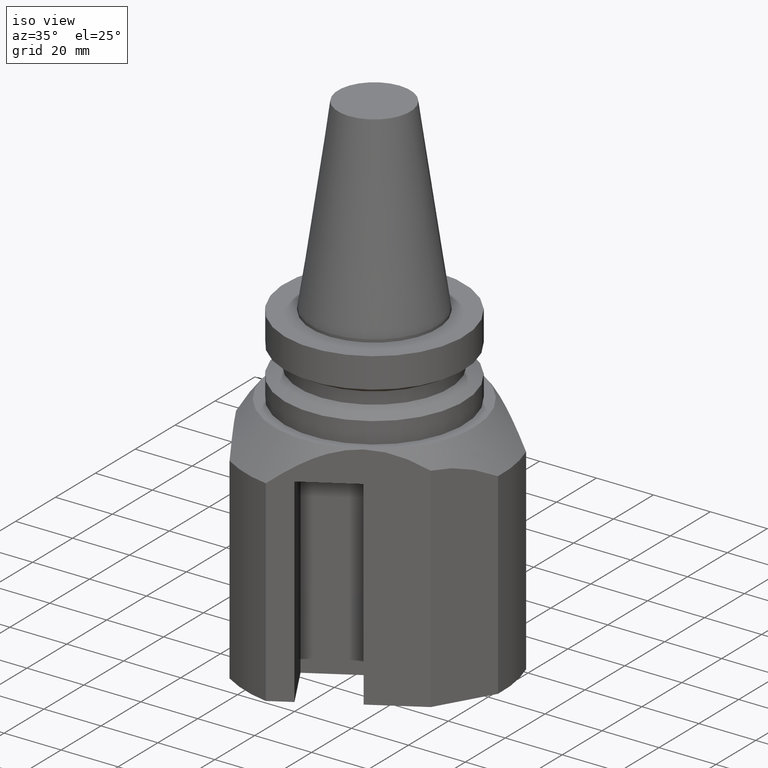
[diagram: clean part render]
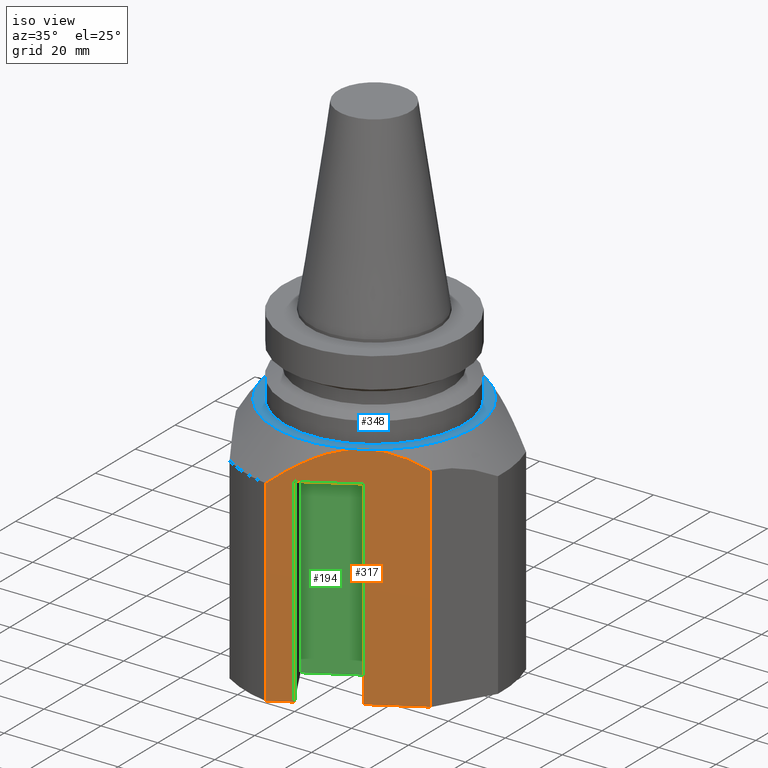
[diagram: same view with three faces highlighted in distinct colors, each labeled with its STEP entity id]
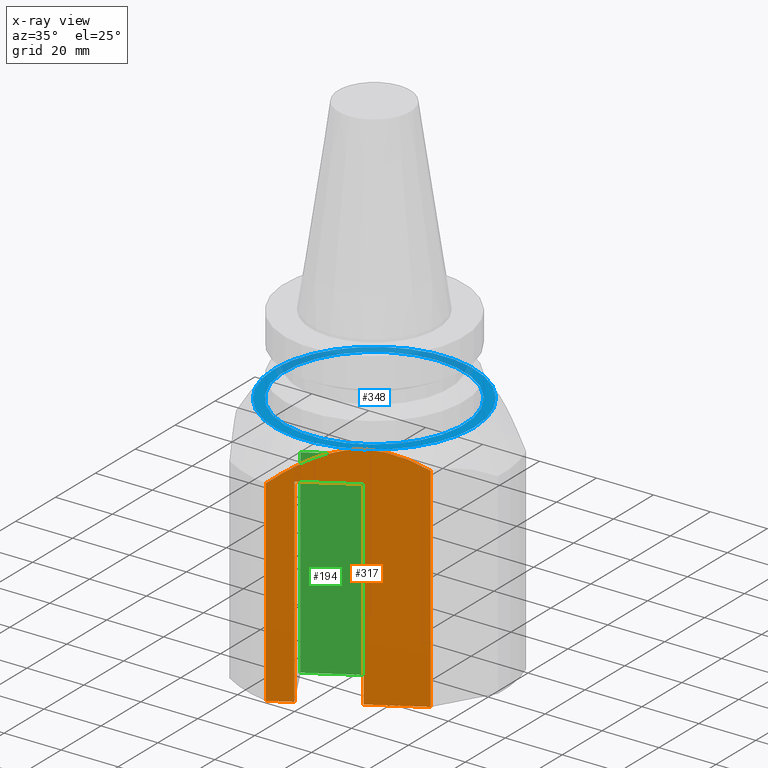
[diagram: x-ray of the same camera — body ghosted, the three highlighted faces saturated]
A machine part, iso view with three faces highlighted in distinct colors.
The next image is the same camera in x-ray (body ghosted, the three faces saturated) — at least one of them is partly hidden behind the body in this view.
Their STEP definitions:

[orange] entity #317 — the highlighted planar face has unit normal (-0.5, 0.866, -0).
#148=EDGE_CURVE('Unnamed[1]',#440,#441,#442,.T.);
#150=EDGE_CURVE('Unnamed[1]',#444,#445,#446,.T.);
#158=EDGE_CURVE('Unnamed[1]',#458,#459,#460,.T.);
#177=EDGE_CURVE('Unnamed[1]',#491,#492,#493,.T.);
#188=EDGE_CURVE('Unnamed[1]',#458,#492,#509,.T.);
#251=EDGE_CURVE('Unnamed[1]',#441,#444,#599,.T.);
#280=EDGE_CURVE('Unnamed[1]',#638,#459,#639,.T.);
#282=EDGE_CURVE('Unnamed[1]',#440,#562,#641,.T.);
#317=ADVANCED_FACE('Unnamed[1]',(#685),#686,.F.);
#385=EDGE_CURVE('Unnamed[1]',#562,#638,#767,.T.);
#404=EDGE_CURVE('Unnamed[1]',#445,#491,#789,.T.);
#440=VERTEX_POINT('',#823);
#441=VERTEX_POINT('',#824);
#442=LINE('',#825,#826);
#444=VERTEX_POINT('',#829);
#445=VERTEX_POINT('',#830);
#446=(B_SPLINE_CURVE(2,(#832,#833,#834),.UNSPECIFIED.,.F.,.F.)B_SPLINE_CURVE_WITH_KNOTS((3,3),(0.0,31.0884589213691),.UNSPECIFIED.)RATIONAL_B_SPLINE_CURVE((1.0,1.06899021366542,1.0))BOUNDED_CURVE()REPRESENTATION_ITEM('')GEOMETRIC_REPRESENTATION_ITEM()CURVE());
#458=VERTEX_POINT('',#858);
#459=VERTEX_POINT('',#859);
#460=LINE('',#860,#861);
#491=VERTEX_POINT('',#912);
#492=VERTEX_POINT('',#913);
#493=(B_SPLINE_CURVE(2,(#915,#916,#917),.UNSPECIFIED.,.F.,.F.)B_SPLINE_CURVE_WITH_KNOTS((3,3),(0.0,31.0884589213691),.UNSPECIFIED.)RATIONAL_B_SPLINE_CURVE((1.0,1.06899021366542,1.0))BOUNDED_CURVE()REPRESENTATION_ITEM('')GEOMETRIC_REPRESENTATION_ITEM()CURVE());
#509=LINE('',#947,#948);
#562=VERTEX_POINT('',#1038);
#599=LINE('',#1104,#1105);
#638=VERTEX_POINT('',#1165);
#639=LINE('',#1166,#1167);
#641=LINE('',#1170,#1171);
#685=FACE_OUTER_BOUND('',#1235,.T.);
#686=PLANE('',#1236);
#767=LINE('',#1383,#1384);
#789=LINE('',#1414,#1415);
#823=CARTESIAN_POINT('',(0.179491924310755,-40.3108891324556,-109.999999999999));
#824=CARTESIAN_POINT('',(-6.99489742783171,-44.4530247561868,-109.999999999999));
#825=CARTESIAN_POINT('',(20.443176615021,-28.6116453214988,-110.0));
#826=VECTOR('',#1434,1.0);
#829=CARTESIAN_POINT('',(-6.99489742783171,-44.4530247561868,-40.9175350302172));
#830=CARTESIAN_POINT('',(17.4912162002426,-30.3159604616084,-28.9999997615812));
#832=CARTESIAN_POINT('',(-6.99489742787853,-44.4530247562138,-40.9175350302577));
#833=CARTESIAN_POINT('',(6.77854123492265,-36.5009262365777,-29.0042718234989));
#834=CARTESIAN_POINT('',(17.4912162002426,-30.3159604616084,-28.9999997615812));
#858=CARTESIAN_POINT('',(34.2820323027618,-20.6217782649042,-110.0));
#859=CARTESIAN_POINT('',(17.4999999999993,-30.3108891324544,-110.0));
#860=CARTESIAN_POINT('',(20.443176615021,-28.6116453214988,-110.0));
#861=VECTOR('',#1440,1.0);
#912=CARTESIAN_POINT('',(17.5087837997597,-30.3058178032982,-28.9999997615812));
#913=CARTESIAN_POINT('',(34.2820323027618,-20.6217782649042,-34.9664449312327));
#915=CARTESIAN_POINT('',(17.5087837997597,-30.3058178032982,-28.9999997615812));
#916=CARTESIAN_POINT('',(28.2214587650797,-24.120852028329,-29.0042718234989));
#917=CARTESIAN_POINT('',(41.9948974278808,-16.1687535086928,-40.9175350302577));
#947=CARTESIAN_POINT('',(34.2820323027617,-20.6217782649042,-279.0));
#948=VECTOR('',#1475,1.0);
#1038=CARTESIAN_POINT('',(0.179491924310754,-40.3108891324556,-39.9999999999998));
#1104=CARTESIAN_POINT('',(-6.99489742783119,-44.4530247561865,-75.4587675151083));
#1105=VECTOR('',#1560,1.0);
#1165=CARTESIAN_POINT('',(17.4999999999993,-30.3108891324544,-39.9999999999998));
#1166=CARTESIAN_POINT('',(17.4999999999992,-30.3108891324545,-279.0));
#1167=VECTOR('',#1589,1.0);
#1170=CARTESIAN_POINT('',(0.17949192431074,-40.3108891324556,-279.0));
#1171=VECTOR('',#1590,1.0);
#1235=EDGE_LOOP('',(#1648,#1649,#1650,#1651,#1652,#1653,#1654,#1655,#1656,#1657));
#1236=AXIS2_PLACEMENT_3D('',#1658,#1659,#1660);
#1383=CARTESIAN_POINT('',(4.24576782675331,-37.9632236455808,-39.9999999999998));
#1384=VECTOR('',#1797,1.0);
#1414=CARTESIAN_POINT('',(22.7706200467826,-27.2678952296474,-28.9999997615812));
#1415=VECTOR('',#1825,1.0);
#1434=DIRECTION('',(-0.86602540378441,-0.50000000000005,2.32483850203637E-015));
#1440=DIRECTION('',(-0.86602540378441,-0.50000000000005,2.32483850203637E-015));
#1475=DIRECTION('',(6.12323399573677E-017,1.22464679914735E-016,1.0));
#1560=DIRECTION('',(6.12323399573677E-017,2.6993447194459E-016,1.0));
#1589=DIRECTION('',(-6.12323399573677E-017,-1.22464679914735E-016,-1.0));
#1590=DIRECTION('',(6.12323399573677E-017,1.22464679914735E-016,1.0));
#1648=ORIENTED_EDGE('',*,*,#282,.T.);
#1649=ORIENTED_EDGE('',*,*,#385,.T.);
#1650=ORIENTED_EDGE('',*,*,#280,.T.);
#1651=ORIENTED_EDGE('',*,*,#158,.F.);
#1652=ORIENTED_EDGE('',*,*,#188,.T.);
#1653=ORIENTED_EDGE('',*,*,#177,.F.);
#1654=ORIENTED_EDGE('',*,*,#404,.F.);
#1655=ORIENTED_EDGE('',*,*,#150,.F.);
#1656=ORIENTED_EDGE('',*,*,#251,.F.);
#1657=ORIENTED_EDGE('',*,*,#148,.F.);
#1658=CARTESIAN_POINT('',(13.643567437465,-32.5374015105455,-279.0));
#1659=DIRECTION('',(-0.50000000000005,0.86602540378441,-7.54413538938002E-017));
#1660=DIRECTION('',(-0.86602540378441,-0.50000000000005,1.14261101893617E-016));
#1797=DIRECTION('',(0.86602540378441,0.50000000000005,-1.14261101893617E-016));
#1825=DIRECTION('',(0.86602540378441,0.50000000000005,-1.14261101893617E-016));

[blue] entity #348 — the highlighted planar face has unit normal (0, 0, 1).
#213=EDGE_CURVE('Unnamed[1]',#544,#445,#545,.T.);
#253=EDGE_CURVE('Unnamed[1]',#601,#601,#602,.T.);
#284=EDGE_CURVE('Unnamed[1]',#567,#643,#644,.T.);
#348=ADVANCED_FACE('Unnamed[1]',(#725,#726),#727,.T.);
#375=EDGE_CURVE('Unnamed[1]',#488,#544,#757,.T.);
#381=EDGE_CURVE('Unnamed[1]',#491,#567,#763,.T.);
#395=EDGE_CURVE('Unnamed[1]',#643,#488,#778,.T.);
#404=EDGE_CURVE('Unnamed[1]',#445,#491,#789,.T.);
#445=VERTEX_POINT('',#830);
#488=VERTEX_POINT('',#899);
#491=VERTEX_POINT('',#912);
#544=VERTEX_POINT('',#1005);
#545=CIRCLE('',#1006,35.0000014696205);
#567=VERTEX_POINT('',#1045);
#601=VERTEX_POINT('',#1108);
#602=CIRCLE('',#1109,31.4999999999984);
#643=VERTEX_POINT('',#1174);
#644=LINE('',#1175,#1176);
#725=FACE_BOUND('',#1289,.T.);
#726=FACE_OUTER_BOUND('',#1290,.T.);
#727=PLANE('',#1291);
#757=LINE('',#1364,#1365);
#763=CIRCLE('',#1376,35.0000014696205);
#778=CIRCLE('',#1398,35.0000014696205);
#789=LINE('',#1414,#1415);
#830=CARTESIAN_POINT('',(17.4912162002426,-30.3159604616084,-28.9999997615812));
#899=CARTESIAN_POINT('',(-35.0000000000001,0.0101426537613133,-28.9999997615812));
#912=CARTESIAN_POINT('',(17.5087837997597,-30.3058178032982,-28.9999997615812));
#1005=CARTESIAN_POINT('',(-35.0000000000001,-0.0101426537624374,-28.9999997615812));
#1006=AXIS2_PLACEMENT_3D('',#1517,#1518,#1519);
#1045=CARTESIAN_POINT('',(17.5087838003882,30.3058178029351,-28.9999997615812));
#1108=CARTESIAN_POINT('',(2.08189957314924E-015,31.4999999999983,-28.9999997615812));
#1109=AXIS2_PLACEMENT_3D('',#1561,#1562,#1563);
#1174=CARTESIAN_POINT('',(17.4912161996077,30.3159604619747,-28.9999997615812));
#1175=CARTESIAN_POINT('',(12.2293799532183,33.3538830352591,-28.9999997615812));
#1176=VECTOR('',#1591,1.0);
#1289=EDGE_LOOP('',(#1743));
#1290=EDGE_LOOP('',(#1744,#1745,#1746,#1747,#1748,#1749));
#1291=AXIS2_PLACEMENT_3D('',#1750,#1751,#1752);
#1364=CARTESIAN_POINT('',(-35.0000000000004,18.8515127454982,-28.9999997615812));
#1365=VECTOR('',#1790,1.0);
#1376=AXIS2_PLACEMENT_3D('',#1793,#1794,#1795);
#1398=AXIS2_PLACEMENT_3D('',#1810,#1811,#1812);
#1414=CARTESIAN_POINT('',(22.7706200467826,-27.2678952296474,-28.9999997615812));
#1415=VECTOR('',#1825,1.0);
#1517=CARTESIAN_POINT('',(-1.77573784416473E-015,-1.92489808601885E-014,-28.9999997615812));
#1518=DIRECTION('',(6.12323399573677E-017,2.69934471944565E-016,1.0));
#1519=DIRECTION('',(1.22464679914735E-016,1.0,-2.69934471944565E-016));
#1561=CARTESIAN_POINT('',(-1.77573784416473E-015,-1.92489808601885E-014,-28.9999997615812));
#1562=DIRECTION('',(6.12323399573677E-017,2.69934471944597E-016,1.0));
#1563=DIRECTION('',(1.22464679914735E-016,1.0,-2.69934471944597E-016));
#1591=DIRECTION('',(-0.866025403784461,0.499999999999962,-8.20357802111623E-018));
#1743=ORIENTED_EDGE('',*,*,#253,.F.);
#1744=ORIENTED_EDGE('',*,*,#404,.T.);
#1745=ORIENTED_EDGE('',*,*,#381,.T.);
#1746=ORIENTED_EDGE('',*,*,#284,.T.);
#1747=ORIENTED_EDGE('',*,*,#395,.T.);
#1748=ORIENTED_EDGE('',*,*,#375,.T.);
#1749=ORIENTED_EDGE('',*,*,#213,.T.);
#1750=CARTESIAN_POINT('',(2.29621285298842E-015,33.2500007348094,-28.9999997615812));
#1751=DIRECTION('',(6.12323399573677E-017,1.22464679914735E-016,1.0));
#1752=DIRECTION('',(1.22464679914735E-016,1.0,-1.22464679914735E-016));
#1790=DIRECTION('',(1.53816434551991E-014,-1.0,1.22464679914734E-016));
#1793=CARTESIAN_POINT('',(-1.77573784416473E-015,-1.92489808601885E-014,-28.9999997615812));
#1794=DIRECTION('',(6.12323399573677E-017,2.69934471944565E-016,1.0));
#1795=DIRECTION('',(1.22464679914735E-016,1.0,-2.69934471944565E-016));
#1810=CARTESIAN_POINT('',(-1.77573784416473E-015,-1.92489808601885E-014,-28.9999997615812));
#1811=DIRECTION('',(6.12323399573677E-017,2.69934471944565E-016,1.0));
#1812=DIRECTION('',(1.22464679914735E-016,1.0,-2.69934471944565E-016));
#1825=DIRECTION('',(0.86602540378441,0.50000000000005,-1.14261101893617E-016));

[green] entity #194 — the highlighted planar face has unit normal (-0.5, 0.866, -0).
#143=EDGE_CURVE('Unnamed[1]',#431,#432,#433,.T.);
#194=ADVANCED_FACE('Unnamed[1]',(#516),#517,.F.);
#259=EDGE_CURVE('Unnamed[1]',#563,#609,#610,.T.);
#276=EDGE_CURVE('Unnamed[1]',#432,#563,#633,.T.);
#383=EDGE_CURVE('Unnamed[1]',#431,#609,#765,.T.);
#431=VERTEX_POINT('',#811);
#432=VERTEX_POINT('',#812);
#433=LINE('',#813,#814);
#516=FACE_OUTER_BOUND('',#957,.T.);
#517=PLANE('',#958);
#563=VERTEX_POINT('',#1039);
#609=VERTEX_POINT('',#1120);
#610=LINE('',#1121,#1122);
#633=LINE('',#1156,#1157);
#765=LINE('',#1379,#1380);
#811=CARTESIAN_POINT('',(7.49999999999999,-12.9903810567671,-110.0));
#812=CARTESIAN_POINT('',(-9.82050807568897,-22.9903810567669,-110.0));
#813=CARTESIAN_POINT('',(8.04126587736531,-12.6778810567671,-110.0));
#814=VECTOR('',#1427,1.0);
#957=EDGE_LOOP('',(#1485,#1486,#1487,#1488));
#958=AXIS2_PLACEMENT_3D('',#1489,#1490,#1491);
#1039=CARTESIAN_POINT('',(-9.82050807568897,-22.9903810567668,-39.9999999999998));
#1120=CARTESIAN_POINT('',(7.5,-12.990381056767,-39.9999999999998));
#1121=CARTESIAN_POINT('',(-9.82050807568897,-22.9903810567668,-39.9999999999998));
#1122=VECTOR('',#1568,1.0);
#1156=CARTESIAN_POINT('',(-9.82050807568898,-22.9903810567669,-279.0));
#1157=VECTOR('',#1587,1.0);
#1379=CARTESIAN_POINT('',(7.49999999999998,-12.9903810567671,-279.0));
#1380=VECTOR('',#1796,1.0);
#1427=DIRECTION('',(-0.866025403784446,-0.499999999999988,2.32483850203609E-015));
#1485=ORIENTED_EDGE('',*,*,#143,.F.);
#1486=ORIENTED_EDGE('',*,*,#383,.T.);
#1487=ORIENTED_EDGE('',*,*,#259,.F.);
#1488=ORIENTED_EDGE('',*,*,#276,.F.);
#1489=CARTESIAN_POINT('',(-1.1602540378445,-17.990381056767,-279.0));
#1490=DIRECTION('',(-0.499999999999988,0.866025403784446,-7.54413538938084E-017));
#1491=DIRECTION('',(-0.866025403784446,-0.499999999999988,1.14261101893612E-016));
#1568=DIRECTION('',(0.866025403784446,0.499999999999988,-1.14261101893612E-016));
#1587=DIRECTION('',(6.12323399573677E-017,1.22464679914735E-016,1.0));
#1796=DIRECTION('',(6.12323399573677E-017,1.22464679914735E-016,1.0));